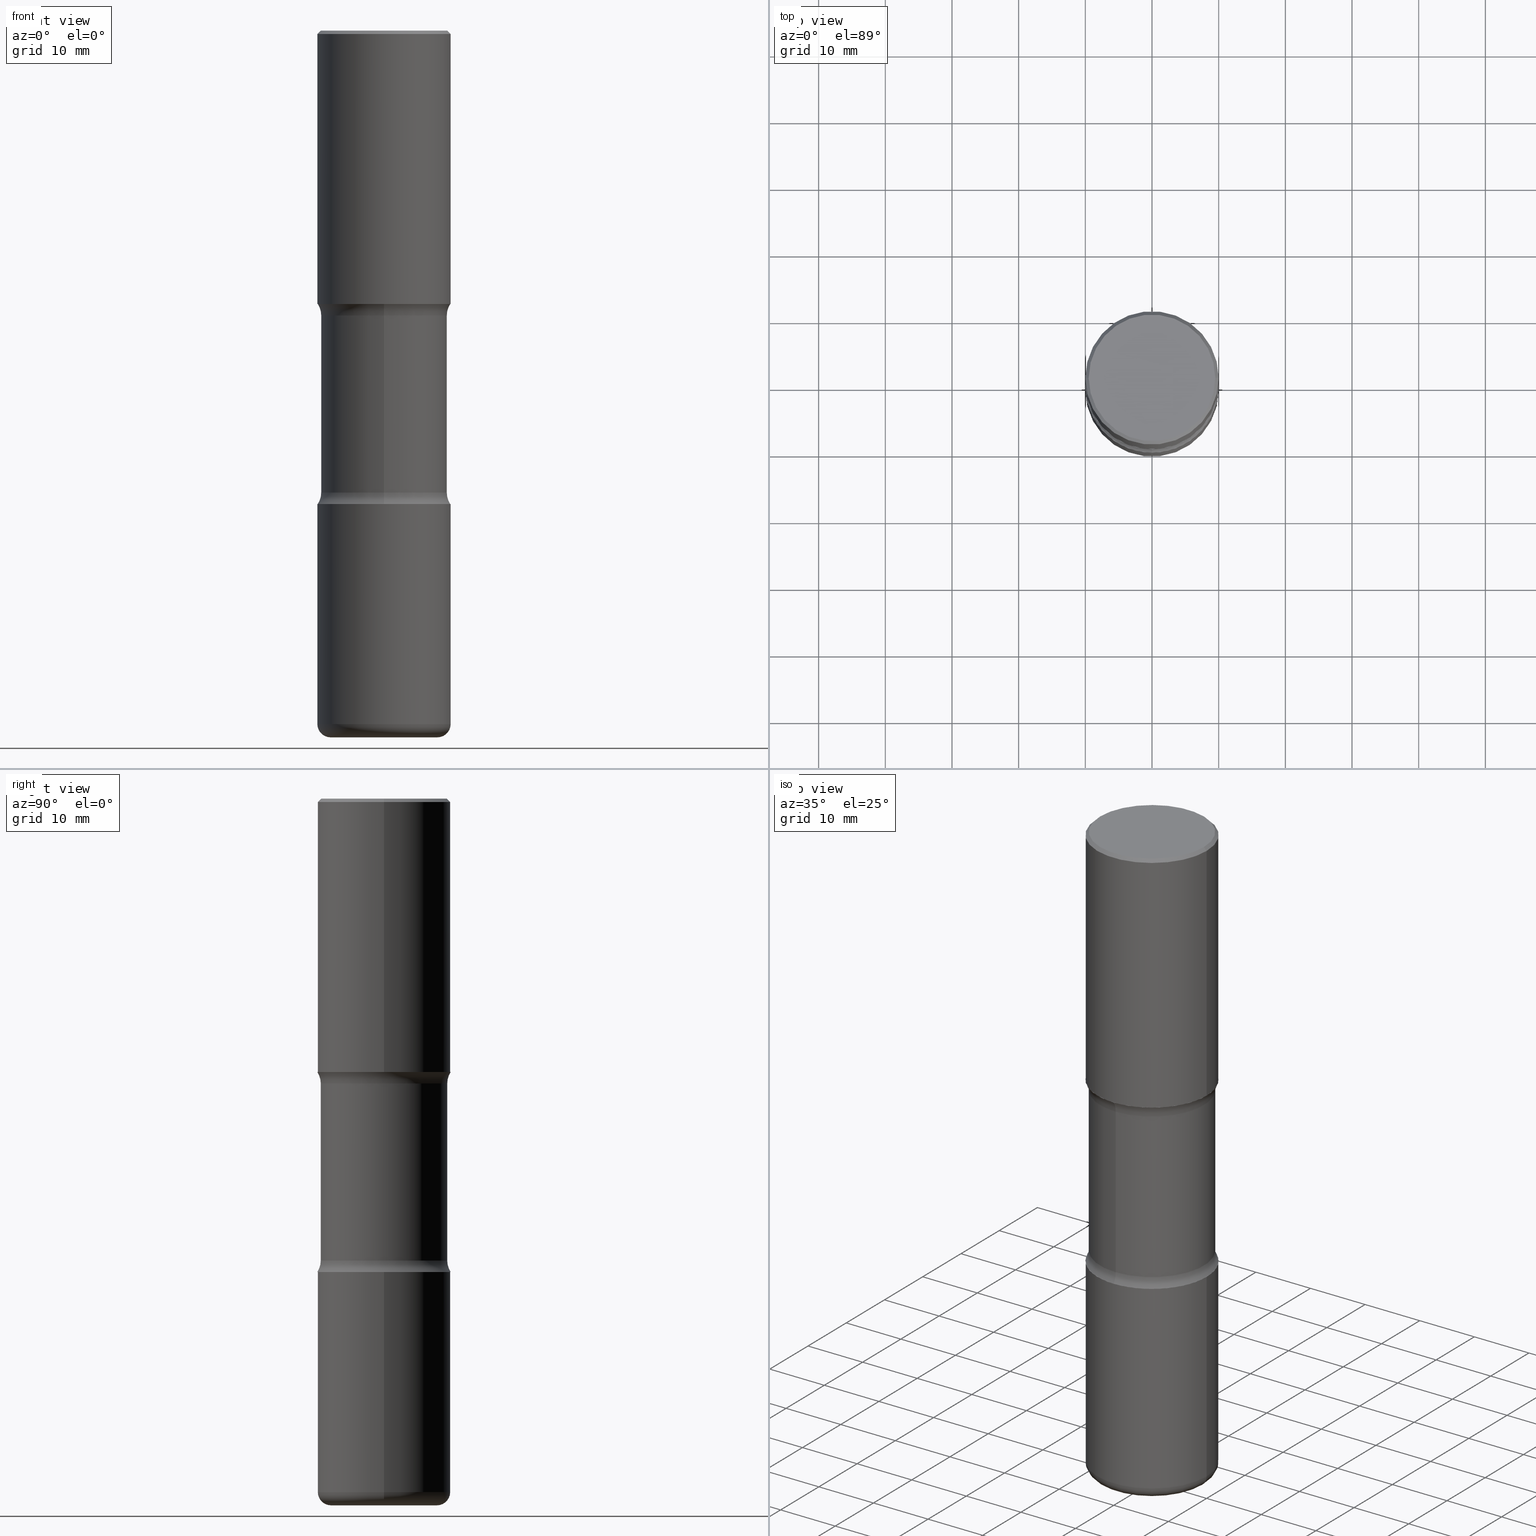
[diagram: canonical four-view strip — front | top / right | iso, engineering-drawing reading convention]
A machine part, canonical four-view strip (front | top / right | iso — engineering-drawing reading convention). The complete STEP part file that produces these views, byte-faithful:
ISO-10303-21;
HEADER;
FILE_DESCRIPTION (( 'STEP AP203' ),
    '1' );
FILE_NAME ('45009.STEP',
    '2024-03-02T04:36:53',
    ( '' ),
    ( '' ),
    'SwSTEP 2.0',
    'SolidWorks 2023',
    '' );
FILE_SCHEMA (( 'CONFIG_CONTROL_DESIGN' ));
ENDSEC;

DATA;
#1 = AXIS2_PLACEMENT_3D ( 'NONE', #102, #436, #474 ) ;
#2 = AXIS2_PLACEMENT_3D ( 'NONE', #407, #542, #65 ) ;
#3 = CARTESIAN_POINT ( 'NONE',  ( 0.3737000000000003097, -2.667287895133370725E-15, -1.280553747028278189E-17 ) ) ;
#4 = CIRCLE ( 'NONE', #315, 0.1250000000000000278 ) ;
#5 = APPROVAL ( #342, 'UNSPECIFIED' ) ;
#6 = ORIENTED_EDGE ( 'NONE', *, *, #43, .F. ) ;
#7 = AXIS2_PLACEMENT_3D ( 'NONE', #191, #404, #545 ) ;
#8 = FACE_OUTER_BOUND ( 'NONE', #123, .T. ) ;
#9 = CYLINDRICAL_SURFACE ( 'NONE', #358, 0.3735000000000001097 ) ;
#10 = MANIFOLD_SOLID_BREP ( 'Body-Move/Copy2[1]', #487 ) ;
#11 = CARTESIAN_POINT ( 'NONE',  ( -2.700978061722585382E-15, -0.3937000000000099864, -2.795199999999999019 ) ) ;
#12 = EDGE_CURVE ( 'NONE', #316, #271, #16, .T. ) ;
#13 = DIRECTION ( 'NONE',  ( 6.982962677686265922E-15, 1.000000000000000000, -2.925673888797068529E-15 ) ) ;
#14 = PERSON_AND_ORGANIZATION ( #421, #98 ) ;
#15 = CARTESIAN_POINT ( 'NONE',  ( 0.000000000000000000, 0.000000000000000000, 0.000000000000000000 ) ) ;
#16 = LINE ( 'NONE', #308, #420 ) ;
#17 = CIRCLE ( 'NONE', #158, 0.1249999999999999584 ) ;
#18 = PERSON_AND_ORGANIZATION ( #421, #98 ) ;
#19 = AXIS2_PLACEMENT_3D ( 'NONE', #310, #429, #266 ) ;
#20 = CARTESIAN_POINT ( 'NONE',  ( 2.608136560115886865E-15, 0.3734999999999905618, -2.727068069159902741 ) ) ;
#21 = LINE ( 'NONE', #273, #244 ) ;
#22 = EDGE_CURVE ( 'NONE', #78, #330, #179, .T. ) ;
#23 = PERSON_AND_ORGANIZATION ( #421, #98 ) ;
#24 = DIRECTION ( 'NONE',  ( 7.105427357601001859E-15, 1.000000000000000000, -3.491481338843145583E-15 ) ) ;
#25 = DIRECTION ( 'NONE',  ( 1.000000000000000000, -6.982962677686265922E-15, 4.883557194083112340E-29 ) ) ;
#26 = ORIENTED_EDGE ( 'NONE', *, *, #435, .F. ) ;
#27 = DATE_AND_TIME ( #145, #347 ) ;
#28 = CARTESIAN_POINT ( 'NONE',  ( 0.3937000000000006605, -8.384792435231810596E-15, -1.614100000000000090 ) ) ;
#29 = DIRECTION ( 'NONE',  ( -2.497382066111305685E-29, 3.417138595909611452E-15, 1.000000000000000000 ) ) ;
#30 = ORIENTED_EDGE ( 'NONE', *, *, #335, .F. ) ;
#31 = ADVANCED_FACE ( 'NONE', ( #352 ), #9, .T. ) ;
#32 = DIRECTION ( 'NONE',  ( -2.445468806185136597E-29, 3.491481338843145583E-15, 1.000000000000000000 ) ) ;
#33 = DIRECTION ( 'NONE',  ( 2.497382066111305685E-29, -3.417138595909611452E-15, -1.000000000000000000 ) ) ;
#34 = ORIENTED_EDGE ( 'NONE', *, *, #173, .T. ) ;
#35 = DIRECTION ( 'NONE',  ( 1.000000000000000000, -6.982962677686266711E-15, 4.876176775795935793E-29 ) ) ;
#36 = ORIENTED_EDGE ( 'NONE', *, *, #43, .T. ) ;
#37 = AXIS2_PLACEMENT_3D ( 'NONE', #74, #120, #280 ) ;
#38 = TOROIDAL_SURFACE ( 'NONE', #379, 0.4985000000000003872, 0.1250000000000000278 ) ;
#39 = EDGE_CURVE ( 'NONE', #413, #391, #477, .T. ) ;
#40 = ORIENTED_EDGE ( 'NONE', *, *, #488, .T. ) ;
#41 = CARTESIAN_POINT ( 'NONE',  ( 6.835574407048695164E-29, -9.759388638334361670E-15, -2.795200000000000351 ) ) ;
#42 = AXIS2_PLACEMENT_3D ( 'NONE', #350, #144, #344 ) ;
#43 = EDGE_CURVE ( 'NONE', #68, #220, #201, .T. ) ;
#44 = EDGE_LOOP ( 'NONE', ( #36, #197, #467, #30 ) ) ;
#45 = PRODUCT_RELATED_PRODUCT_CATEGORY ( 'detail', '', ( #558 ) ) ;
#46 = CARTESIAN_POINT ( 'NONE',  ( 6.621268914021895076E-29, -9.589803473068410880E-15, -2.727068069159901409 ) ) ;
#47 = AXIS2_PLACEMENT_3D ( 'NONE', #49, #33, #196 ) ;
#48 = EDGE_CURVE ( 'NONE', #330, #78, #250, .T. ) ;
#49 = CARTESIAN_POINT ( 'NONE',  ( 4.056067910974230799E-29, -5.956222493193065901E-15, -1.682231930840099476 ) ) ;
#50 = CIRCLE ( 'NONE', #127, 0.1249999999999999584 ) ;
#51 = CARTESIAN_POINT ( 'NONE',  ( 2.749192406205127393E-15, 0.3936999999999950539, -1.614100000000001423 ) ) ;
#52 = DIRECTION ( 'NONE',  ( 1.000000000000000000, -6.982962677686264344E-15, 0.000000000000000000 ) ) ;
#53 = EDGE_LOOP ( 'NONE', ( #282, #312, #215, #288 ) ) ;
#54 = PERSON_AND_ORGANIZATION ( #421, #98 ) ;
#55 = CARTESIAN_POINT ( 'NONE',  ( 0.3150000000000001688, -1.677028316673138822E-14, -4.173199999999999577 ) ) ;
#56 = COORDINATED_UNIVERSAL_TIME_OFFSET ( 5, 0, .BEHIND. ) ;
#57 = CIRCLE ( 'NONE', #223, 0.3937000000000003830 ) ;
#58 = AXIS2_PLACEMENT_3D ( 'NONE', #331, #511, #415 ) ;
#59 = ADVANCED_FACE ( 'NONE', ( #311 ), #270, .F. ) ;
#60 = CARTESIAN_POINT ( 'NONE',  ( -0.3737000000000003097, 2.644447966039791425E-15, -1.280553747031960567E-17 ) ) ;
#61 = EDGE_LOOP ( 'NONE', ( #460, #304, #248, #482 ) ) ;
#62 = CARTESIAN_POINT ( 'NONE',  ( 1.001297202692504215E-28, -1.429587034189326149E-14, -4.094500000000000028 ) ) ;
#63 = CARTESIAN_POINT ( 'NONE',  ( 0.3937000000000002164, -2.749192406205084794E-15, 1.919750796630861012E-29 ) ) ;
#64 = VERTEX_POINT ( 'NONE', #393 ) ;
#65 = DIRECTION ( 'NONE',  ( 6.982962677686265922E-15, 1.000000000000000000, -2.775563112689115117E-15 ) ) ;
#66 = DIRECTION ( 'NONE',  ( -2.445468806185136597E-29, 3.491481338843145583E-15, 1.000000000000000000 ) ) ;
#67 = EDGE_CURVE ( 'NONE', #525, #330, #17, .T. ) ;
#68 = VERTEX_POINT ( 'NONE', #55 ) ;
#69 = CLOSED_SHELL ( 'NONE', ( #481, #199, #321, #295, #161, #289 ) ) ;
#70 = AXIS2_PLACEMENT_3D ( 'NONE', #553, #444, #115 ) ;
#71 = FACE_OUTER_BOUND ( 'NONE', #367, .T. ) ;
#72 = DIRECTION ( 'NONE',  ( -2.445468806185136597E-29, 3.491481338843145583E-15, 1.000000000000000000 ) ) ;
#73 = ORIENTED_EDGE ( 'NONE', *, *, #225, .F. ) ;
#74 = CARTESIAN_POINT ( 'NONE',  ( 3.947231200063429727E-29, -5.635600029026721857E-15, -1.614100000000000090 ) ) ;
#75 = ORIENTED_EDGE ( 'NONE', *, *, #225, .T. ) ;
#76 = CARTESIAN_POINT ( 'NONE',  ( 0.3937000000000003830, -2.770807688499518100E-15, -0.02000000000000013572 ) ) ;
#77 = CARTESIAN_POINT ( 'NONE',  ( 3.885916448764630888E-29, -5.723406242705518712E-15, -1.614100000000000090 ) ) ;
#78 = VERTEX_POINT ( 'NONE', #20 ) ;
#79 = DIRECTION ( 'NONE',  ( 2.497382066111305685E-29, -3.417138595909611452E-15, -1.000000000000000000 ) ) ;
#80 = CIRCLE ( 'NONE', #384, 0.3937000000000006605 ) ;
#81 = AXIS2_PLACEMENT_3D ( 'NONE', #480, #216, #256 ) ;
#82 = EDGE_CURVE ( 'NONE', #222, #64, #326, .T. ) ;
#83 = APPLICATION_CONTEXT ( 'configuration controlled 3d designs of mechanical parts and assemblies' ) ;
#84 = EDGE_CURVE ( 'NONE', #547, #556, #496, .T. ) ;
#85 = TOROIDAL_SURFACE ( 'NONE', #107, 0.3150000000000001688, 0.07869999999999970075 ) ;
#86 = AXIS2_PLACEMENT_3D ( 'NONE', #427, #219, #476 ) ;
#87 = APPROVAL_STATUS ( 'not_yet_approved' ) ;
#88 = DIRECTION ( 'NONE',  ( 1.000000000000000000, -6.982962677686266711E-15, 0.000000000000000000 ) ) ;
#89 = ADVANCED_FACE ( 'NONE', ( #504 ), #364, .T. ) ;
#90 = DIRECTION ( 'NONE',  ( 2.497382066111305685E-29, -3.417138595909611452E-15, -1.000000000000000000 ) ) ;
#91 = CARTESIAN_POINT ( 'NONE',  ( -3.419958251889042592E-15, -0.4985000000000096576, -2.727068069159899633 ) ) ;
#92 = MECHANICAL_CONTEXT ( 'NONE', #292, 'mechanical' ) ;
#93 = CARTESIAN_POINT ( 'NONE',  ( -0.3937000000000003830, 2.679362779428222679E-15, -0.02000000000000013572 ) ) ;
#94 = DATE_TIME_ROLE ( 'classification_date' ) ;
#95 = AXIS2_PLACEMENT_3D ( 'NONE', #180, #136, #13 ) ;
#96 = DIRECTION ( 'NONE',  ( 2.497382066111305685E-29, -3.417138595909611452E-15, -1.000000000000000000 ) ) ;
#97 = VECTOR ( 'NONE', #424, 39.37007874015748143 ) ;
#98 = ORGANIZATION ( 'UNSPECIFIED', 'UNSPECIFIED', '' ) ;
#99 = DIRECTION ( 'NONE',  ( -2.445468806185136877E-29, 3.491481338843145188E-15, 1.000000000000000000 ) ) ;
#100 = APPROVAL_ROLE ( '' ) ;
#101 = ADVANCED_BREP_SHAPE_REPRESENTATION ( '45009', ( #10, #376, #194, #204 ), #202 ) ;
#102 = CARTESIAN_POINT ( 'NONE',  ( 6.621268914021895076E-29, -9.589803473068410880E-15, -2.727068069159901409 ) ) ;
#103 = SECURITY_CLASSIFICATION_LEVEL ( 'unclassified' ) ;
#104 = CC_DESIGN_PERSON_AND_ORGANIZATION_ASSIGNMENT ( #23, #360, ( #362 ) ) ;
#105 = CARTESIAN_POINT ( 'NONE',  ( -0.3937000000000007160, -5.530807721427186863E-17, -1.614100000000000090 ) ) ;
#106 = DIRECTION ( 'NONE',  ( -2.445468806185136877E-29, 3.491481338843145188E-15, 1.000000000000000000 ) ) ;
#107 = AXIS2_PLACEMENT_3D ( 'NONE', #109, #402, #25 ) ;
#108 = DIRECTION ( 'NONE',  ( 1.000000000000000000, -6.982962677686266711E-15, 0.000000000000000000 ) ) ;
#109 = CARTESIAN_POINT ( 'NONE',  ( 1.001297202692504215E-28, -1.429587034189326149E-14, -4.094500000000000028 ) ) ;
#110 = ORIENTED_EDGE ( 'NONE', *, *, #410, .T. ) ;
#111 = DIRECTION ( 'NONE',  ( -1.000000000000000000, 7.105427357600995548E-15, 0.000000000000000000 ) ) ;
#112 = ADVANCED_FACE ( 'NONE', ( #322 ), #370, .F. ) ;
#113 = DIRECTION ( 'NONE',  ( 1.000000000000000000, -6.982962677686269866E-15, 0.000000000000000000 ) ) ;
#114 = ORIENTED_EDGE ( 'NONE', *, *, #124, .F. ) ;
#115 = DIRECTION ( 'NONE',  ( -1.000000000000000000, 6.982962677686266711E-15, 0.000000000000000000 ) ) ;
#116 = CARTESIAN_POINT ( 'NONE',  ( 6.835574407048695164E-29, -9.759388638334361670E-15, -2.795200000000000351 ) ) ;
#117 = ORIENTED_EDGE ( 'NONE', *, *, #506, .T. ) ;
#118 = AXIS2_PLACEMENT_3D ( 'NONE', #15, #212, #473 ) ;
#119 = CARTESIAN_POINT ( 'NONE',  ( 0.000000000000000000, 0.000000000000000000, 0.000000000000000000 ) ) ;
#120 = DIRECTION ( 'NONE',  ( 2.497382066111305685E-29, -3.417138595909611452E-15, -1.000000000000000000 ) ) ;
#121 = ORIENTED_EDGE ( 'NONE', *, *, #12, .F. ) ;
#122 = CARTESIAN_POINT ( 'NONE',  ( 0.3937000000000001054, -1.704506274809834471E-14, -4.094500000000000028 ) ) ;
#123 = EDGE_LOOP ( 'NONE', ( #162, #34, #408, #243 ) ) ;
#124 = EDGE_CURVE ( 'NONE', #229, #338, #478, .T. ) ;
#125 = CARTESIAN_POINT ( 'NONE',  ( 0.3937000000000002164, -1.250858104453944804E-14, -2.795200000000000351 ) ) ;
#126 = AXIS2_PLACEMENT_3D ( 'NONE', #509, #232, #153 ) ;
#127 = AXIS2_PLACEMENT_3D ( 'NONE', #368, #491, #394 ) ;
#128 = EDGE_CURVE ( 'NONE', #406, #556, #298, .T. ) ;
#129 = APPLICATION_PROTOCOL_DEFINITION ( 'international standard', 'config_control_design', 1994, #292 ) ;
#130 = DIRECTION ( 'NONE',  ( 1.000000000000000000, -6.982962677686266711E-15, 4.876176775795935793E-29 ) ) ;
#131 = DATE_AND_TIME ( #468, #414 ) ;
#132 = VECTOR ( 'NONE', #287, 39.37007874015748143 ) ;
#133 = VECTOR ( 'NONE', #513, 39.37007874015748143 ) ;
#134 = CC_DESIGN_APPROVAL ( #239, ( #362 ) ) ;
#135 = ADVANCED_FACE ( 'NONE', ( #555 ), #85, .T. ) ;
#136 = DIRECTION ( 'NONE',  ( 2.497382066111305685E-29, -3.417138595909611452E-15, -1.000000000000000000 ) ) ;
#137 = COORDINATED_UNIVERSAL_TIME_OFFSET ( 5, 0, .BEHIND. ) ;
#138 = ORIENTED_EDGE ( 'NONE', *, *, #435, .T. ) ;
#139 = CARTESIAN_POINT ( 'NONE',  ( 0.3937000000000003830, -2.770807688499518100E-15, -0.02000000000000013572 ) ) ;
#140 = ORIENTED_EDGE ( 'NONE', *, *, #166, .T. ) ;
#141 = AXIS2_PLACEMENT_3D ( 'NONE', #62, #538, #146 ) ;
#142 = EDGE_CURVE ( 'NONE', #220, #68, #369, .T. ) ;
#143 = DIRECTION ( 'NONE',  ( -2.445468806185136597E-29, 3.491481338843145583E-15, 1.000000000000000000 ) ) ;
#144 = DIRECTION ( 'NONE',  ( 2.497382066111305685E-29, -3.417138595909611452E-15, -1.000000000000000000 ) ) ;
#145 = CALENDAR_DATE ( 2024, 1, 3 ) ;
#146 = DIRECTION ( 'NONE',  ( 1.000000000000000000, -6.982962677686265922E-15, 4.883557194083112340E-29 ) ) ;
#147 = FACE_OUTER_BOUND ( 'NONE', #416, .T. ) ;
#148 = AXIS2_PLACEMENT_3D ( 'NONE', #492, #29, #187 ) ;
#149 = ADVANCED_FACE ( 'NONE', ( #160 ), #359, .F. ) ;
#150 = DIRECTION ( 'NONE',  ( 2.497382066111305685E-29, -3.417138595909611452E-15, -1.000000000000000000 ) ) ;
#151 = EDGE_LOOP ( 'NONE', ( #510, #75, #138, #275 ) ) ;
#152 = CARTESIAN_POINT ( 'NONE',  ( -0.3937000000000002164, -9.230222739426296007E-15, -2.795200000000000351 ) ) ;
#153 = DIRECTION ( 'NONE',  ( 1.000000000000000000, -6.982962677686269866E-15, 0.000000000000000000 ) ) ;
#154 = ORIENTED_EDGE ( 'NONE', *, *, #177, .T. ) ;
#155 = FACE_OUTER_BOUND ( 'NONE', #53, .T. ) ;
#156 = CARTESIAN_POINT ( 'NONE',  ( 1.526000829616135218E-28, -7.332206718714375120E-15, -4.173200000000000465 ) ) ;
#157 = ORIENTED_EDGE ( 'NONE', *, *, #380, .T. ) ;
#158 = AXIS2_PLACEMENT_3D ( 'NONE', #91, #483, #257 ) ;
#159 = CARTESIAN_POINT ( 'NONE',  ( 4.056067910974230799E-29, -5.956222493193065901E-15, -1.682231930840099476 ) ) ;
#160 = FACE_OUTER_BOUND ( 'NONE', #242, .T. ) ;
#161 = ADVANCED_FACE ( 'NONE', ( #147 ), #550, .F. ) ;
#162 = ORIENTED_EDGE ( 'NONE', *, *, #39, .F. ) ;
#163 = LINE ( 'NONE', #339, #97 ) ;
#164 = EDGE_LOOP ( 'NONE', ( #200, #485, #455, #494 ) ) ;
#165 = AXIS2_PLACEMENT_3D ( 'NONE', #172, #96, #345 ) ;
#166 = EDGE_CURVE ( 'NONE', #222, #229, #4, .T. ) ;
#167 = AXIS2_PLACEMENT_3D ( 'NONE', #471, #524, #255 ) ;
#168 = CC_DESIGN_DATE_AND_TIME_ASSIGNMENT ( #27, #94, ( #490 ) ) ;
#169 = ORIENTED_EDGE ( 'NONE', *, *, #252, .T. ) ;
#170 = AXIS2_PLACEMENT_3D ( 'NONE', #313, #253, #88 ) ;
#171 = PRODUCT_DEFINITION_FORMATION_WITH_SPECIFIED_SOURCE ( 'ANY', '', #558, .NOT_KNOWN. ) ;
#172 = CARTESIAN_POINT ( 'NONE',  ( 6.665422944839096374E-29, -9.526572387846816848E-15, -2.727068069159901409 ) ) ;
#173 = EDGE_CURVE ( 'NONE', #413, #316, #80, .T. ) ;
#174 = CARTESIAN_POINT ( 'NONE',  ( 1.027696689415007474E-28, -1.446820562349780459E-14, -4.173200000000000465 ) ) ;
#175 = ORIENTED_EDGE ( 'NONE', *, *, #488, .F. ) ;
#176 = PERSON_AND_ORGANIZATION_ROLE ( 'creator' ) ;
#177 = EDGE_CURVE ( 'NONE', #556, #406, #290, .T. ) ;
#178 = FACE_OUTER_BOUND ( 'NONE', #61, .T. ) ;
#179 = CIRCLE ( 'NONE', #165, 0.3735000000000000542 ) ;
#180 = CARTESIAN_POINT ( 'NONE',  ( 6.665422944839096374E-29, -9.526572387846816848E-15, -2.727068069159901409 ) ) ;
#181 = VECTOR ( 'NONE', #334, 39.37007874015748143 ) ;
#182 = ORIENTED_EDGE ( 'NONE', *, *, #281, .T. ) ;
#183 = DIRECTION ( 'NONE',  ( 6.982962677686265922E-15, 1.000000000000000000, -3.469453890861388868E-15 ) ) ;
#184 = DIRECTION ( 'NONE',  ( 2.438088387897960049E-29, -3.491481338843145188E-15, -1.000000000000000000 ) ) ;
#185 = EDGE_CURVE ( 'NONE', #547, #559, #512, .T. ) ;
#186 = DIRECTION ( 'NONE',  ( -1.000000000000000000, 6.982962677686265922E-15, -4.876176775795935793E-29 ) ) ;
#187 = DIRECTION ( 'NONE',  ( -6.982962677686265922E-15, -1.000000000000000000, 3.417138595909611452E-15 ) ) ;
#188 = ORIENTED_EDGE ( 'NONE', *, *, #173, .F. ) ;
#189 = AXIS2_PLACEMENT_3D ( 'NONE', #454, #241, #466 ) ;
#190 = CC_DESIGN_APPROVAL ( #445, ( #171 ) ) ;
#191 = CARTESIAN_POINT ( 'NONE',  ( 1.027696689415007474E-28, -1.446820562349780459E-14, -4.173200000000000465 ) ) ;
#192 = DIRECTION ( 'NONE',  ( 1.000000000000000000, -6.982962677686266711E-15, 0.000000000000000000 ) ) ;
#193 = ORIENTED_EDGE ( 'NONE', *, *, #456, .T. ) ;
#194 = MANIFOLD_SOLID_BREP ( 'Body-Move/Copy2[4]', #378 ) ;
#195 = DIRECTION ( 'NONE',  ( 1.000000000000000000, -6.982962677686266711E-15, 4.876212485538971195E-29 ) ) ;
#196 = DIRECTION ( 'NONE',  ( 6.982962677686265922E-15, 1.000000000000000000, -3.657092360996333689E-15 ) ) ;
#197 = ORIENTED_EDGE ( 'NONE', *, *, #398, .T. ) ;
#198 = CARTESIAN_POINT ( 'NONE',  ( -2.631687031945092870E-15, -0.3735000000000095466, -2.727068069159900521 ) ) ;
#199 = ADVANCED_FACE ( 'NONE', ( #405 ), #514, .T. ) ;
#200 = ORIENTED_EDGE ( 'NONE', *, *, #281, .F. ) ;
#201 = CIRCLE ( 'NONE', #297, 0.3150000000000001688 ) ;
#202 =( GEOMETRIC_REPRESENTATION_CONTEXT ( 3 ) GLOBAL_UNCERTAINTY_ASSIGNED_CONTEXT ( ( #453 ) ) GLOBAL_UNIT_ASSIGNED_CONTEXT ( ( #462, #294, #418 ) ) REPRESENTATION_CONTEXT ( 'NONE', 'WORKASPACE' ) );
#203 = CARTESIAN_POINT ( 'NONE',  ( 4.018463748733707681E-29, -6.010073793817493129E-15, -1.682231930840099476 ) ) ;
#204 = AXIS2_PLACEMENT_3D ( 'NONE', #301, #475, #517 ) ;
#205 = ORIENTED_EDGE ( 'NONE', *, *, #302, .T. ) ;
#206 = CARTESIAN_POINT ( 'NONE',  ( -0.3937000000000001054, -1.149846359120574434E-14, -4.094500000000000028 ) ) ;
#207 = EDGE_LOOP ( 'NONE', ( #354, #278, #440, #497 ) ) ;
#208 = EDGE_CURVE ( 'NONE', #525, #443, #541, .T. ) ;
#209 = AXIS2_PLACEMENT_3D ( 'NONE', #363, #441, #186 ) ;
#210 = COORDINATED_UNIVERSAL_TIME_OFFSET ( 5, 0, .BEHIND. ) ;
#211 = PERSON_AND_ORGANIZATION_ROLE ( 'design_owner' ) ;
#212 = DIRECTION ( 'NONE',  ( -2.445468806185136597E-29, 3.491481338843145583E-15, 1.000000000000000000 ) ) ;
#213 = ADVANCED_FACE ( 'NONE', ( #373 ), #557, .F. ) ;
#214 = CIRCLE ( 'NONE', #167, 0.3937000000000002164 ) ;
#215 = ORIENTED_EDGE ( 'NONE', *, *, #84, .T. ) ;
#216 = DIRECTION ( 'NONE',  ( -2.445468806185136597E-29, 3.491481338843145583E-15, 1.000000000000000000 ) ) ;
#217 = ORIENTED_EDGE ( 'NONE', *, *, #82, .F. ) ;
#218 = ADVANCED_FACE ( 'NONE', ( #377 ), #283, .F. ) ;
#219 = DIRECTION ( 'NONE',  ( -2.445468806185136597E-29, 3.491481338843145583E-15, 1.000000000000000000 ) ) ;
#220 = VERTEX_POINT ( 'NONE', #303 ) ;
#221 = EDGE_LOOP ( 'NONE', ( #515, #551, #528, #238 ) ) ;
#222 = VERTEX_POINT ( 'NONE', #390 ) ;
#223 = AXIS2_PLACEMENT_3D ( 'NONE', #400, #32, #108 ) ;
#224 = FACE_OUTER_BOUND ( 'NONE', #44, .T. ) ;
#225 = EDGE_CURVE ( 'NONE', #64, #338, #346, .T. ) ;
#226 = ORIENTED_EDGE ( 'NONE', *, *, #124, .T. ) ;
#227 = CYLINDRICAL_SURFACE ( 'NONE', #371, 0.3937000000000004940 ) ;
#228 = DIRECTION ( 'NONE',  ( -2.445468806185136597E-29, 3.491481338843145583E-15, 1.000000000000000000 ) ) ;
#229 = VERTEX_POINT ( 'NONE', #51 ) ;
#230 = CARTESIAN_POINT ( 'NONE',  ( 3.885916448764630888E-29, -5.723406242705518712E-15, -1.614100000000000090 ) ) ;
#231 = PRODUCT_DEFINITION_SHAPE ( 'NONE', 'NONE',  #362 ) ;
#232 = DIRECTION ( 'NONE',  ( -2.445468806185136597E-29, 3.491481338843145583E-15, 1.000000000000000000 ) ) ;
#233 = AXIS2_PLACEMENT_3D ( 'NONE', #499, #277, #329 ) ;
#234 = ORIENTED_EDGE ( 'NONE', *, *, #22, .T. ) ;
#235 = AXIS2_PLACEMENT_3D ( 'NONE', #486, #24, #111 ) ;
#236 = DIRECTION ( 'NONE',  ( 6.982962677686265922E-15, 1.000000000000000000, -3.657092360996333689E-15 ) ) ;
#237 = DIRECTION ( 'NONE',  ( 1.000000000000000000, -6.982962677686265133E-15, 0.000000000000000000 ) ) ;
#238 = ORIENTED_EDGE ( 'NONE', *, *, #247, .T. ) ;
#239 = APPROVAL ( #87, 'UNSPECIFIED' ) ;
#240 = DIRECTION ( 'NONE',  ( -6.982962677686266711E-15, -1.000000000000000000, 3.491481338843145583E-15 ) ) ;
#241 = DIRECTION ( 'NONE',  ( 2.445468806185136597E-29, -3.491481338843145583E-15, -1.000000000000000000 ) ) ;
#242 = EDGE_LOOP ( 'NONE', ( #114, #26 ) ) ;
#243 = ORIENTED_EDGE ( 'NONE', *, *, #247, .F. ) ;
#244 = VECTOR ( 'NONE', #495, 39.37007874015748143 ) ;
#245 = DIRECTION ( 'NONE',  ( 6.982962677686265922E-15, 1.000000000000000000, -3.417138595909611452E-15 ) ) ;
#246 = CC_DESIGN_SECURITY_CLASSIFICATION ( #490, ( #171 ) ) ;
#247 = EDGE_CURVE ( 'NONE', #391, #271, #328, .T. ) ;
#248 = ORIENTED_EDGE ( 'NONE', *, *, #48, .T. ) ;
#249 = ORIENTED_EDGE ( 'NONE', *, *, #39, .T. ) ;
#250 = CIRCLE ( 'NONE', #95, 0.3735000000000000542 ) ;
#251 = CIRCLE ( 'NONE', #412, 0.07869999999999970075 ) ;
#252 = EDGE_CURVE ( 'NONE', #316, #413, #503, .T. ) ;
#253 = DIRECTION ( 'NONE',  ( -2.445468806185136597E-29, 3.491481338843145583E-15, 1.000000000000000000 ) ) ;
#254 = EDGE_LOOP ( 'NONE', ( #73, #217, #140, #226 ) ) ;
#255 = DIRECTION ( 'NONE',  ( 1.000000000000000000, -6.982962677686265133E-15, 0.000000000000000000 ) ) ;
#256 = DIRECTION ( 'NONE',  ( 1.000000000000000000, -6.982962677686266711E-15, 4.876212485538971195E-29 ) ) ;
#257 = DIRECTION ( 'NONE',  ( 6.860497997771528407E-15, 1.000000000000000000, 0.000000000000000000 ) ) ;
#258 = AXIS2_PLACEMENT_3D ( 'NONE', #264, #433, #533 ) ;
#259 = FACE_OUTER_BOUND ( 'NONE', #323, .T. ) ;
#260 = LOCAL_TIME ( 23, 36, 53.00000000000000000, #309 ) ;
#261 = ADVANCED_FACE ( 'NONE', ( #259 ), #300, .T. ) ;
#262 = DIRECTION ( 'NONE',  ( 2.497382066111305685E-29, -3.417138595909611452E-15, -1.000000000000000000 ) ) ;
#263 = DATE_AND_TIME ( #340, #523 ) ;
#264 = CARTESIAN_POINT ( 'NONE',  ( 0.000000000000000000, 0.000000000000000000, 0.000000000000000000 ) ) ;
#265 = COORDINATED_UNIVERSAL_TIME_OFFSET ( 5, 0, .BEHIND. ) ;
#266 = DIRECTION ( 'NONE',  ( 6.860497997771532351E-15, 1.000000000000000000, 0.000000000000000000 ) ) ;
#267 = ORIENTED_EDGE ( 'NONE', *, *, #177, .F. ) ;
#268 = PERSON_AND_ORGANIZATION ( #421, #98 ) ;
#269 = CARTESIAN_POINT ( 'NONE',  ( -0.3937000000000003830, 2.679362779428222679E-15, -0.02000000000000013572 ) ) ;
#270 = TOROIDAL_SURFACE ( 'NONE', #1, 0.4985000000000001097, 0.1249999999999999445 ) ;
#271 = VERTEX_POINT ( 'NONE', #139 ) ;
#272 = ADVANCED_FACE ( 'NONE', ( #178 ), #479, .F. ) ;
#273 = CARTESIAN_POINT ( 'NONE',  ( -0.3937000000000002164, 2.797406750687515970E-15, -1.936584745033357576E-29 ) ) ;
#274 = DIRECTION ( 'NONE',  ( 2.497382066111305685E-29, -3.417138595909611452E-15, -1.000000000000000000 ) ) ;
#275 = ORIENTED_EDGE ( 'NONE', *, *, #166, .F. ) ;
#276 = DIRECTION ( 'NONE',  ( -2.445468806185136597E-29, 3.491481338843145583E-15, 1.000000000000000000 ) ) ;
#277 = DIRECTION ( 'NONE',  ( -2.438088387897960049E-29, 3.491481338843145188E-15, 1.000000000000000000 ) ) ;
#278 = ORIENTED_EDGE ( 'NONE', *, *, #142, .T. ) ;
#279 = CYLINDRICAL_SURFACE ( 'NONE', #7, 0.3735000000000001097 ) ;
#280 = DIRECTION ( 'NONE',  ( 6.982962677686265922E-15, 1.000000000000000000, -3.417138595909611452E-15 ) ) ;
#281 = EDGE_CURVE ( 'NONE', #507, #470, #401, .T. ) ;
#282 = ORIENTED_EDGE ( 'NONE', *, *, #380, .F. ) ;
#283 = TOROIDAL_SURFACE ( 'NONE', #42, 0.4985000000000003872, 0.1250000000000000278 ) ;
#284 = DIRECTION ( 'NONE',  ( 1.000000000000000000, -6.982962677686271444E-15, 0.000000000000000000 ) ) ;
#285 = CARTESIAN_POINT ( 'NONE',  ( 3.947231200063429727E-29, -5.635600029026721857E-15, -1.614100000000000090 ) ) ;
#286 = EDGE_LOOP ( 'NONE', ( #169, #249, #386, #121 ) ) ;
#287 = DIRECTION ( 'NONE',  ( -2.445468806185136877E-29, 3.491481338843145188E-15, 1.000000000000000000 ) ) ;
#288 = ORIENTED_EDGE ( 'NONE', *, *, #128, .F. ) ;
#289 = ADVANCED_FACE ( 'NONE', ( #8 ), #389, .T. ) ;
#290 = CIRCLE ( 'NONE', #126, 0.3937000000000002164 ) ;
#291 = AXIS2_PLACEMENT_3D ( 'NONE', #46, #90, #382 ) ;
#292 = APPLICATION_CONTEXT ( 'configuration controlled 3d designs of mechanical parts and assemblies' ) ;
#293 = ORIENTED_EDGE ( 'NONE', *, *, #252, .F. ) ;
#294 =( NAMED_UNIT ( * ) PLANE_ANGLE_UNIT ( ) SI_UNIT ( $, .RADIAN. ) );
#295 = ADVANCED_FACE ( 'NONE', ( #71 ), #314, .F. ) ;
#296 = CARTESIAN_POINT ( 'NONE',  ( 2.608136560115923941E-15, 0.3734999999999856213, -4.173200000000001353 ) ) ;
#297 = AXIS2_PLACEMENT_3D ( 'NONE', #434, #143, #52 ) ;
#298 = CIRCLE ( 'NONE', #552, 0.3937000000000002164 ) ;
#299 = CIRCLE ( 'NONE', #469, 0.3937000000000008271 ) ;
#300 = CYLINDRICAL_SURFACE ( 'NONE', #118, 0.3937000000000002164 ) ;
#301 = CARTESIAN_POINT ( 'NONE',  ( 0.000000000000000000, 0.000000000000000000, 0.000000000000000000 ) ) ;
#302 = EDGE_CURVE ( 'NONE', #443, #78, #50, .T. ) ;
#303 = CARTESIAN_POINT ( 'NONE',  ( -0.3150000000000001688, -1.191545194841082041E-14, -4.173199999999999577 ) ) ;
#304 = ORIENTED_EDGE ( 'NONE', *, *, #67, .T. ) ;
#305 = AXIS2_PLACEMENT_3D ( 'NONE', #449, #72, #237 ) ;
#306 = VECTOR ( 'NONE', #508, 39.37007874015748143 ) ;
#307 = CC_DESIGN_PERSON_AND_ORGANIZATION_ASSIGNMENT ( #54, #537, ( #171 ) ) ;
#308 = CARTESIAN_POINT ( 'NONE',  ( 0.3937000000000004940, -2.749192406205086766E-15, 1.919750796630862414E-29 ) ) ;
#309 = COORDINATED_UNIVERSAL_TIME_OFFSET ( 5, 0, .BEHIND. ) ;
#310 = CARTESIAN_POINT ( 'NONE',  ( -3.419958251889070202E-15, -0.4985000000000063825, -1.682231930840097922 ) ) ;
#311 = FACE_OUTER_BOUND ( 'NONE', #500, .T. ) ;
#312 = ORIENTED_EDGE ( 'NONE', *, *, #522, .T. ) ;
#313 = CARTESIAN_POINT ( 'NONE',  ( 4.890937612370306439E-31, -6.982962677686338448E-17, -0.02000000000000013572 ) ) ;
#314 = PLANE ( 'NONE',  #209 ) ;
#315 = AXIS2_PLACEMENT_3D ( 'NONE', #546, #366, #446 ) ;
#316 = VERTEX_POINT ( 'NONE', #28 ) ;
#317 = FACE_OUTER_BOUND ( 'NONE', #286, .T. ) ;
#318 = DIRECTION ( 'NONE',  ( -2.445468806185136597E-29, 3.491481338843145583E-15, 1.000000000000000000 ) ) ;
#319 = APPROVAL_DATE_TIME ( #484, #445 ) ;
#320 = CARTESIAN_POINT ( 'NONE',  ( 0.000000000000000000, 0.000000000000000000, 0.000000000000000000 ) ) ;
#321 = ADVANCED_FACE ( 'NONE', ( #548 ), #554, .T. ) ;
#322 = FACE_OUTER_BOUND ( 'NONE', #343, .T. ) ;
#323 = EDGE_LOOP ( 'NONE', ( #336, #157, #267, #403 ) ) ;
#324 = CARTESIAN_POINT ( 'NONE',  ( 2.749192406205152636E-15, 0.3936999999999903910, -2.795200000000001239 ) ) ;
#325 = DIRECTION ( 'NONE',  ( 1.000000000000000000, -6.982962677686264344E-15, 0.000000000000000000 ) ) ;
#326 = CIRCLE ( 'NONE', #47, 0.3735000000000002762 ) ;
#327 = ORIENTED_EDGE ( 'NONE', *, *, #48, .F. ) ;
#328 = CIRCLE ( 'NONE', #170, 0.3937000000000003830 ) ;
#329 = DIRECTION ( 'NONE',  ( 1.000000000000000000, -6.982962677686265922E-15, 4.876176775795935793E-29 ) ) ;
#330 = VERTEX_POINT ( 'NONE', #198 ) ;
#331 = CARTESIAN_POINT ( 'NONE',  ( 6.835574407048695164E-29, -9.759388638334361670E-15, -2.795200000000000351 ) ) ;
#332 = TOROIDAL_SURFACE ( 'NONE', #141, 0.3150000000000001688, 0.07869999999999970075 ) ;
#333 = CC_DESIGN_APPROVAL ( #5, ( #490 ) ) ;
#334 = DIRECTION ( 'NONE',  ( 2.497382066111305685E-29, -3.417138595909611452E-15, -1.000000000000000000 ) ) ;
#335 = EDGE_CURVE ( 'NONE', #68, #547, #251, .T. ) ;
#336 = ORIENTED_EDGE ( 'NONE', *, *, #185, .T. ) ;
#337 = APPLICATION_PROTOCOL_DEFINITION ( 'international standard', 'config_control_design', 1994, #83 ) ;
#338 = VERTEX_POINT ( 'NONE', #357 ) ;
#339 = CARTESIAN_POINT ( 'NONE',  ( -2.562396002167564465E-15, -0.3735000000000145981, -4.173199999999998688 ) ) ;
#340 = CALENDAR_DATE ( 2024, 1, 3 ) ;
#341 = AXIS2_PLACEMENT_3D ( 'NONE', #41, #520, #411 ) ;
#342 = APPROVAL_STATUS ( 'not_yet_approved' ) ;
#343 = EDGE_LOOP ( 'NONE', ( #110, #451 ) ) ;
#344 = DIRECTION ( 'NONE',  ( 6.982962677686265922E-15, 1.000000000000000000, -3.417138595909611452E-15 ) ) ;
#345 = DIRECTION ( 'NONE',  ( 6.982962677686265922E-15, 1.000000000000000000, -2.925673888797068529E-15 ) ) ;
#346 = CIRCLE ( 'NONE', #19, 0.1250000000000000278 ) ;
#347 = LOCAL_TIME ( 23, 36, 53.00000000000000000, #56 ) ;
#348 = ORIENTED_EDGE ( 'NONE', *, *, #506, .F. ) ;
#349 = DATE_TIME_ROLE ( 'creation_date' ) ;
#350 = CARTESIAN_POINT ( 'NONE',  ( 4.018463748733707681E-29, -6.010073793817493129E-15, -1.682231930840099476 ) ) ;
#351 = CC_DESIGN_DATE_AND_TIME_ASSIGNMENT ( #356, #349, ( #362 ) ) ;
#352 = FACE_OUTER_BOUND ( 'NONE', #531, .T. ) ;
#353 = CALENDAR_DATE ( 2024, 1, 3 ) ;
#354 = ORIENTED_EDGE ( 'NONE', *, *, #398, .F. ) ;
#355 = CARTESIAN_POINT ( 'NONE',  ( 3.131554243005659264E-46, -4.471029511141341874E-32, -1.280553747030123384E-17 ) ) ;
#356 = DATE_AND_TIME ( #353, #260 ) ;
#357 = CARTESIAN_POINT ( 'NONE',  ( -2.700978061722618909E-15, -0.3937000000000064892, -1.614099999999998758 ) ) ;
#358 = AXIS2_PLACEMENT_3D ( 'NONE', #174, #262, #432 ) ;
#359 = PLANE ( 'NONE',  #37 ) ;
#360 = PERSON_AND_ORGANIZATION_ROLE ( 'creator' ) ;
#361 = ORIENTED_EDGE ( 'NONE', *, *, #142, .F. ) ;
#362 = PRODUCT_DEFINITION ( 'UNKNOWN', '', #171, #465 ) ;
#363 = CARTESIAN_POINT ( 'NONE',  ( 2.609533152651359776E-15, 0.3737000000000003097, -1.311169345060835261E-15 ) ) ;
#364 = PLANE ( 'NONE',  #438 ) ;
#365 = ORIENTED_EDGE ( 'NONE', *, *, #82, .T. ) ;
#366 = DIRECTION ( 'NONE',  ( -1.000000000000000000, 6.982962677686265922E-15, -4.883557194083112340E-29 ) ) ;
#367 = EDGE_LOOP ( 'NONE', ( #193, #182 ) ) ;
#368 = CARTESIAN_POINT ( 'NONE',  ( 3.481006894826670204E-15, 0.4984999999999905063, -2.727068069159903185 ) ) ;
#369 = CIRCLE ( 'NONE', #521, 0.3150000000000001688 ) ;
#370 = PLANE ( 'NONE',  #148 ) ;
#371 = AXIS2_PLACEMENT_3D ( 'NONE', #119, #396, #130 ) ;
#372 = APPROVAL_PERSON_ORGANIZATION ( #519, #239, #422 ) ;
#373 = FACE_OUTER_BOUND ( 'NONE', #447, .T. ) ;
#374 = EDGE_CURVE ( 'NONE', #64, #222, #461, .T. ) ;
#375 = ORIENTED_EDGE ( 'NONE', *, *, #67, .F. ) ;
#376 = MANIFOLD_SOLID_BREP ( 'Body-Move/Copy2[2]', #69 ) ;
#377 = FACE_OUTER_BOUND ( 'NONE', #254, .T. ) ;
#378 = CLOSED_SHELL ( 'NONE', ( #383, #272, #560, #218, #149, #112, #59, #31 ) ) ;
#379 = AXIS2_PLACEMENT_3D ( 'NONE', #203, #79, #245 ) ;
#380 = EDGE_CURVE ( 'NONE', #559, #406, #21, .T. ) ;
#381 = LINE ( 'NONE', #296, #181 ) ;
#382 = DIRECTION ( 'NONE',  ( 6.982962677686265922E-15, 1.000000000000000000, -3.417138595909611452E-15 ) ) ;
#383 = ADVANCED_FACE ( 'NONE', ( #452 ), #279, .T. ) ;
#384 = AXIS2_PLACEMENT_3D ( 'NONE', #285, #66, #192 ) ;
#385 = CIRCLE ( 'NONE', #2, 0.3937000000000002164 ) ;
#386 = ORIENTED_EDGE ( 'NONE', *, *, #442, .F. ) ;
#387 = CC_DESIGN_PERSON_AND_ORGANIZATION_ASSIGNMENT ( #14, #176, ( #171 ) ) ;
#388 = APPROVAL_DATE_TIME ( #263, #5 ) ;
#389 = CYLINDRICAL_SURFACE ( 'NONE', #258, 0.3937000000000004940 ) ;
#390 = CARTESIAN_POINT ( 'NONE',  ( 2.608136560115862805E-15, 0.3734999999999943365, -1.682231930840100809 ) ) ;
#391 = VERTEX_POINT ( 'NONE', #269 ) ;
#392 = AXIS2_PLACEMENT_3D ( 'NONE', #159, #501, #236 ) ;
#393 = CARTESIAN_POINT ( 'NONE',  ( -2.631687031945122847E-15, -0.3735000000000062159, -1.682231930840098144 ) ) ;
#394 = DIRECTION ( 'NONE',  ( -6.982962677686265133E-15, -1.000000000000000000, 0.000000000000000000 ) ) ;
#395 = CALENDAR_DATE ( 2024, 1, 3 ) ;
#396 = DIRECTION ( 'NONE',  ( -2.445468806185136597E-29, 3.491481338843145583E-15, 1.000000000000000000 ) ) ;
#397 = DIRECTION ( 'NONE',  ( -1.000000000000000000, 6.982962677686265922E-15, -4.876176775795935793E-29 ) ) ;
#398 = EDGE_CURVE ( 'NONE', #220, #559, #532, .T. ) ;
#399 = ORIENTED_EDGE ( 'NONE', *, *, #128, .T. ) ;
#400 = CARTESIAN_POINT ( 'NONE',  ( 4.890937612370306439E-31, -6.982962677686338448E-17, -0.02000000000000013572 ) ) ;
#401 = CIRCLE ( 'NONE', #81, 0.3737000000000003097 ) ;
#402 = DIRECTION ( 'NONE',  ( -2.445468806185136597E-29, 3.491481338843145583E-15, 1.000000000000000000 ) ) ;
#403 = ORIENTED_EDGE ( 'NONE', *, *, #84, .F. ) ;
#404 = DIRECTION ( 'NONE',  ( 2.497382066111305685E-29, -3.417138595909611452E-15, -1.000000000000000000 ) ) ;
#405 = FACE_OUTER_BOUND ( 'NONE', #164, .T. ) ;
#406 = VERTEX_POINT ( 'NONE', #152 ) ;
#407 = CARTESIAN_POINT ( 'NONE',  ( 6.835574407048695164E-29, -9.759388638334361670E-15, -2.795200000000000351 ) ) ;
#408 = ORIENTED_EDGE ( 'NONE', *, *, #12, .T. ) ;
#409 = FACE_OUTER_BOUND ( 'NONE', #151, .T. ) ;
#410 = EDGE_CURVE ( 'NONE', #443, #525, #385, .T. ) ;
#411 = DIRECTION ( 'NONE',  ( 6.982962677686265922E-15, 1.000000000000000000, -2.775563112689115117E-15 ) ) ;
#412 = AXIS2_PLACEMENT_3D ( 'NONE', #448, #240, #284 ) ;
#413 = VERTEX_POINT ( 'NONE', #105 ) ;
#414 = LOCAL_TIME ( 23, 36, 53.00000000000000000, #210 ) ;
#415 = DIRECTION ( 'NONE',  ( -1.000000000000000000, 6.982962677686265922E-15, -4.876176775795935793E-29 ) ) ;
#416 = EDGE_LOOP ( 'NONE', ( #293, #188 ) ) ;
#417 = ADVANCED_FACE ( 'NONE', ( #155 ), #439, .T. ) ;
#418 =( NAMED_UNIT ( * ) SI_UNIT ( $, .STERADIAN. ) SOLID_ANGLE_UNIT ( ) );
#419 = EDGE_LOOP ( 'NONE', ( #6, #361 ) ) ;
#420 = VECTOR ( 'NONE', #99, 39.37007874015748143 ) ;
#421 = PERSON ( 'UNSPECIFIED', 'UNSPECIFIED', 'UNSPECIFIED', ('UNSPECIFIED'), ('UNSPECIFIED'), ('UNSPECIFIED') ) ;
#422 = APPROVAL_ROLE ( '' ) ;
#423 = AXIS2_PLACEMENT_3D ( 'NONE', #320, #276, #35 ) ;
#424 = DIRECTION ( 'NONE',  ( 2.497382066111305685E-29, -3.417138595909611452E-15, -1.000000000000000000 ) ) ;
#425 = LOCAL_TIME ( 23, 36, 53.00000000000000000, #265 ) ;
#426 = PERSON_AND_ORGANIZATION ( #421, #98 ) ;
#427 = CARTESIAN_POINT ( 'NONE',  ( 3.947231200063429727E-29, -5.635600029026721857E-15, -1.614100000000000090 ) ) ;
#428 = LINE ( 'NONE', #93, #306 ) ;
#429 = DIRECTION ( 'NONE',  ( 1.000000000000000000, -6.860497997771530774E-15, 4.841709315645876741E-29 ) ) ;
#430 = CARTESIAN_POINT ( 'NONE',  ( -0.3937000000000004940, 2.797406750687517942E-15, -1.936584745033358697E-29 ) ) ;
#431 = CIRCLE ( 'NONE', #489, 0.3737000000000003097 ) ;
#432 = DIRECTION ( 'NONE',  ( 6.982962677686265922E-15, 1.000000000000000000, -2.925673888797068135E-15 ) ) ;
#433 = DIRECTION ( 'NONE',  ( -2.445468806185136597E-29, 3.491481338843145583E-15, 1.000000000000000000 ) ) ;
#434 = CARTESIAN_POINT ( 'NONE',  ( 1.020543042197181255E-28, -1.457064992326021168E-14, -4.173199999999999577 ) ) ;
#435 = EDGE_CURVE ( 'NONE', #338, #229, #299, .T. ) ;
#436 = DIRECTION ( 'NONE',  ( 2.497382066111305685E-29, -3.417138595909611452E-15, -1.000000000000000000 ) ) ;
#437 = PERSON_AND_ORGANIZATION_ROLE ( 'classification_officer' ) ;
#438 = AXIS2_PLACEMENT_3D ( 'NONE', #156, #184, #397 ) ;
#439 = CYLINDRICAL_SURFACE ( 'NONE', #423, 0.3937000000000002164 ) ;
#440 = ORIENTED_EDGE ( 'NONE', *, *, #335, .T. ) ;
#441 = DIRECTION ( 'NONE',  ( 2.438088387897960049E-29, -3.491481338843145188E-15, -1.000000000000000000 ) ) ;
#442 = EDGE_CURVE ( 'NONE', #271, #391, #57, .T. ) ;
#443 = VERTEX_POINT ( 'NONE', #324 ) ;
#444 = DIRECTION ( 'NONE',  ( 2.445468806185136597E-29, -3.491481338843145583E-15, -1.000000000000000000 ) ) ;
#445 = APPROVAL ( #543, 'UNSPECIFIED' ) ;
#446 = DIRECTION ( 'NONE',  ( -6.982962677686265133E-15, -1.000000000000000000, 0.000000000000000000 ) ) ;
#447 = EDGE_LOOP ( 'NONE', ( #154, #399 ) ) ;
#448 = CARTESIAN_POINT ( 'NONE',  ( 0.3150000000000001688, -1.649550358536443803E-14, -4.094500000000000028 ) ) ;
#449 = CARTESIAN_POINT ( 'NONE',  ( 1.001297202692504215E-28, -1.429587034189326149E-14, -4.094500000000000028 ) ) ;
#450 = APPROVAL_PERSON_ORGANIZATION ( #535, #445, #100 ) ;
#451 = ORIENTED_EDGE ( 'NONE', *, *, #208, .T. ) ;
#452 = FACE_OUTER_BOUND ( 'NONE', #544, .T. ) ;
#453 = UNCERTAINTY_MEASURE_WITH_UNIT (LENGTH_MEASURE( 1.000000000000000082E-05 ), #462, 'distance_accuracy_value', 'NONE');
#454 = CARTESIAN_POINT ( 'NONE',  ( 4.890937612370306439E-31, -6.982962677686338448E-17, -0.02000000000000013572 ) ) ;
#455 = ORIENTED_EDGE ( 'NONE', *, *, #442, .T. ) ;
#456 = EDGE_CURVE ( 'NONE', #470, #507, #431, .T. ) ;
#457 =( LENGTH_UNIT ( ) NAMED_UNIT ( * ) SI_UNIT ( $, .METRE. ) );
#458 = LINE ( 'NONE', #76, #133 ) ;
#459 = DIRECTION ( 'NONE',  ( 6.982962677686265922E-15, 1.000000000000000000, -3.469453890861388868E-15 ) ) ;
#460 = ORIENTED_EDGE ( 'NONE', *, *, #208, .F. ) ;
#461 = CIRCLE ( 'NONE', #392, 0.3735000000000002762 ) ;
#462 =( CONVERSION_BASED_UNIT ( 'INCH', #518 ) LENGTH_UNIT ( ) NAMED_UNIT ( #516 ) );
#463 = CC_DESIGN_PERSON_AND_ORGANIZATION_ASSIGNMENT ( #426, #211, ( #558 ) ) ;
#464 = ORIENTED_EDGE ( 'NONE', *, *, #410, .F. ) ;
#465 = DESIGN_CONTEXT ( 'detailed design', #83, 'design' ) ;
#466 = DIRECTION ( 'NONE',  ( -1.000000000000000000, 6.982962677686266711E-15, 0.000000000000000000 ) ) ;
#467 = ORIENTED_EDGE ( 'NONE', *, *, #185, .F. ) ;
#468 = CALENDAR_DATE ( 2024, 1, 3 ) ;
#469 = AXIS2_PLACEMENT_3D ( 'NONE', #230, #150, #183 ) ;
#470 = VERTEX_POINT ( 'NONE', #60 ) ;
#471 = CARTESIAN_POINT ( 'NONE',  ( 1.001297202692504215E-28, -1.429587034189326149E-14, -4.094500000000000028 ) ) ;
#472 = ADVANCED_FACE ( 'NONE', ( #224 ), #332, .T. ) ;
#473 = DIRECTION ( 'NONE',  ( 1.000000000000000000, -6.982962677686266711E-15, 4.876176775795935793E-29 ) ) ;
#474 = DIRECTION ( 'NONE',  ( 6.982962677686265922E-15, 1.000000000000000000, -3.417138595909611452E-15 ) ) ;
#475 = DIRECTION ( 'NONE',  ( 0.000000000000000000, 0.000000000000000000, 1.000000000000000000 ) ) ;
#476 = DIRECTION ( 'NONE',  ( 1.000000000000000000, -6.982962677686266711E-15, 0.000000000000000000 ) ) ;
#477 = LINE ( 'NONE', #430, #502 ) ;
#478 = CIRCLE ( 'NONE', #540, 0.3937000000000008271 ) ;
#479 = TOROIDAL_SURFACE ( 'NONE', #291, 0.4985000000000001097, 0.1249999999999999445 ) ;
#480 = CARTESIAN_POINT ( 'NONE',  ( 3.131554243005659264E-46, -4.471029511141341874E-32, -1.280553747030123384E-17 ) ) ;
#481 = ADVANCED_FACE ( 'NONE', ( #317 ), #227, .T. ) ;
#482 = ORIENTED_EDGE ( 'NONE', *, *, #302, .F. ) ;
#483 = DIRECTION ( 'NONE',  ( 1.000000000000000000, -6.860497997771530774E-15, 4.841709315645876741E-29 ) ) ;
#484 = DATE_AND_TIME ( #395, #425 ) ;
#485 = ORIENTED_EDGE ( 'NONE', *, *, #549, .T. ) ;
#486 = CARTESIAN_POINT ( 'NONE',  ( -0.3150000000000001688, -1.205766072424894313E-14, -4.094500000000000028 ) ) ;
#487 = CLOSED_SHELL ( 'NONE', ( #261, #472, #89, #135, #417, #213 ) ) ;
#488 = EDGE_CURVE ( 'NONE', #64, #330, #163, .T. ) ;
#489 = AXIS2_PLACEMENT_3D ( 'NONE', #355, #498, #195 ) ;
#490 = SECURITY_CLASSIFICATION ( '', '', #103 ) ;
#491 = DIRECTION ( 'NONE',  ( -1.000000000000000000, 6.982962677686265922E-15, -4.883557194083112340E-29 ) ) ;
#492 = CARTESIAN_POINT ( 'NONE',  ( 6.835574407048695164E-29, -9.759388638334361670E-15, -2.795200000000000351 ) ) ;
#493 = APPROVAL_DATE_TIME ( #131, #239 ) ;
#494 = ORIENTED_EDGE ( 'NONE', *, *, #530, .F. ) ;
#495 = DIRECTION ( 'NONE',  ( -2.445468806185136877E-29, 3.491481338843145188E-15, 1.000000000000000000 ) ) ;
#496 = LINE ( 'NONE', #63, #132 ) ;
#497 = ORIENTED_EDGE ( 'NONE', *, *, #522, .F. ) ;
#498 = DIRECTION ( 'NONE',  ( -2.445468806185136597E-29, 3.491481338843145583E-15, 1.000000000000000000 ) ) ;
#499 = CARTESIAN_POINT ( 'NONE',  ( 3.947231200063429727E-29, -5.635600029026721857E-15, -1.614100000000000090 ) ) ;
#500 = EDGE_LOOP ( 'NONE', ( #375, #464, #205, #234 ) ) ;
#501 = DIRECTION ( 'NONE',  ( 2.497382066111305685E-29, -3.417138595909611452E-15, -1.000000000000000000 ) ) ;
#502 = VECTOR ( 'NONE', #106, 39.37007874015748143 ) ;
#503 = CIRCLE ( 'NONE', #86, 0.3937000000000006605 ) ;
#504 = FACE_OUTER_BOUND ( 'NONE', #419, .T. ) ;
#505 = APPROVAL_PERSON_ORGANIZATION ( #18, #5, #527 ) ;
#506 = EDGE_CURVE ( 'NONE', #222, #78, #381, .T. ) ;
#507 = VERTEX_POINT ( 'NONE', #3 ) ;
#508 = DIRECTION ( 'NONE',  ( -0.7071067811865464625, 2.468850131082245228E-15, -0.7071067811865486830 ) ) ;
#509 = CARTESIAN_POINT ( 'NONE',  ( 6.835574407048695164E-29, -9.759388638334361670E-15, -2.795200000000000351 ) ) ;
#510 = ORIENTED_EDGE ( 'NONE', *, *, #374, .F. ) ;
#511 = DIRECTION ( 'NONE',  ( 2.438088387897960049E-29, -3.491481338843145188E-15, -1.000000000000000000 ) ) ;
#512 = CIRCLE ( 'NONE', #305, 0.3937000000000002164 ) ;
#513 = DIRECTION ( 'NONE',  ( 0.7071067811865464625, -7.319954787623252890E-15, -0.7071067811865486830 ) ) ;
#514 = CONICAL_SURFACE ( 'NONE', #189, 0.3937000000000003830, 0.7853981633974467247 ) ;
#515 = ORIENTED_EDGE ( 'NONE', *, *, #549, .F. ) ;
#516 = DIMENSIONAL_EXPONENTS ( 1.000000000000000000, 0.000000000000000000, 0.000000000000000000, 0.000000000000000000, 0.000000000000000000, 0.000000000000000000, 0.000000000000000000 ) ;
#517 = DIRECTION ( 'NONE',  ( 1.000000000000000000, 0.000000000000000000, 0.000000000000000000 ) ) ;
#518 = LENGTH_MEASURE_WITH_UNIT ( LENGTH_MEASURE( 0.02539999999999999897 ), #457 );
#519 = PERSON_AND_ORGANIZATION ( #421, #98 ) ;
#520 = DIRECTION ( 'NONE',  ( 2.497382066111305685E-29, -3.417138595909611452E-15, -1.000000000000000000 ) ) ;
#521 = AXIS2_PLACEMENT_3D ( 'NONE', #539, #228, #325 ) ;
#522 = EDGE_CURVE ( 'NONE', #559, #547, #214, .T. ) ;
#523 = LOCAL_TIME ( 23, 36, 53.00000000000000000, #137 ) ;
#524 = DIRECTION ( 'NONE',  ( -2.445468806185136597E-29, 3.491481338843145583E-15, 1.000000000000000000 ) ) ;
#525 = VERTEX_POINT ( 'NONE', #11 ) ;
#526 = CC_DESIGN_PERSON_AND_ORGANIZATION_ASSIGNMENT ( #268, #437, ( #490 ) ) ;
#527 = APPROVAL_ROLE ( '' ) ;
#528 = ORIENTED_EDGE ( 'NONE', *, *, #530, .T. ) ;
#529 = SHAPE_DEFINITION_REPRESENTATION ( #231, #101 ) ;
#530 = EDGE_CURVE ( 'NONE', #470, #391, #428, .T. ) ;
#531 = EDGE_LOOP ( 'NONE', ( #175, #536, #117, #327 ) ) ;
#532 = CIRCLE ( 'NONE', #235, 0.07869999999999970075 ) ;
#533 = DIRECTION ( 'NONE',  ( 1.000000000000000000, -6.982962677686266711E-15, 4.876176775795935793E-29 ) ) ;
#534 = ORIENTED_EDGE ( 'NONE', *, *, #22, .F. ) ;
#535 = PERSON_AND_ORGANIZATION ( #421, #98 ) ;
#536 = ORIENTED_EDGE ( 'NONE', *, *, #374, .T. ) ;
#537 = PERSON_AND_ORGANIZATION_ROLE ( 'design_supplier' ) ;
#538 = DIRECTION ( 'NONE',  ( -2.445468806185136597E-29, 3.491481338843145583E-15, 1.000000000000000000 ) ) ;
#539 = CARTESIAN_POINT ( 'NONE',  ( 1.020543042197181255E-28, -1.457064992326021168E-14, -4.173199999999999577 ) ) ;
#540 = AXIS2_PLACEMENT_3D ( 'NONE', #77, #274, #459 ) ;
#541 = CIRCLE ( 'NONE', #341, 0.3937000000000002164 ) ;
#542 = DIRECTION ( 'NONE',  ( 2.497382066111305685E-29, -3.417138595909611452E-15, -1.000000000000000000 ) ) ;
#543 = APPROVAL_STATUS ( 'not_yet_approved' ) ;
#544 = EDGE_LOOP ( 'NONE', ( #365, #40, #534, #348 ) ) ;
#545 = DIRECTION ( 'NONE',  ( 6.982962677686265922E-15, 1.000000000000000000, -2.925673888797068135E-15 ) ) ;
#546 = CARTESIAN_POINT ( 'NONE',  ( 3.481006894826646538E-15, 0.4984999999999943365, -1.682231930840101253 ) ) ;
#547 = VERTEX_POINT ( 'NONE', #122 ) ;
#548 = FACE_OUTER_BOUND ( 'NONE', #221, .T. ) ;
#549 = EDGE_CURVE ( 'NONE', #507, #271, #458, .T. ) ;
#550 = PLANE ( 'NONE',  #233 ) ;
#551 = ORIENTED_EDGE ( 'NONE', *, *, #456, .F. ) ;
#552 = AXIS2_PLACEMENT_3D ( 'NONE', #116, #318, #113 ) ;
#553 = CARTESIAN_POINT ( 'NONE',  ( 4.890937612370306439E-31, -6.982962677686338448E-17, -0.02000000000000013572 ) ) ;
#554 = CONICAL_SURFACE ( 'NONE', #70, 0.3937000000000003830, 0.7853981633974467247 ) ;
#555 = FACE_OUTER_BOUND ( 'NONE', #207, .T. ) ;
#556 = VERTEX_POINT ( 'NONE', #125 ) ;
#557 = PLANE ( 'NONE',  #58 ) ;
#558 = PRODUCT ( '45009', '45009', '', ( #92 ) ) ;
#559 = VERTEX_POINT ( 'NONE', #206 ) ;
#560 = ADVANCED_FACE ( 'NONE', ( #409 ), #38, .F. ) ;
ENDSEC;
END-ISO-10303-21;
